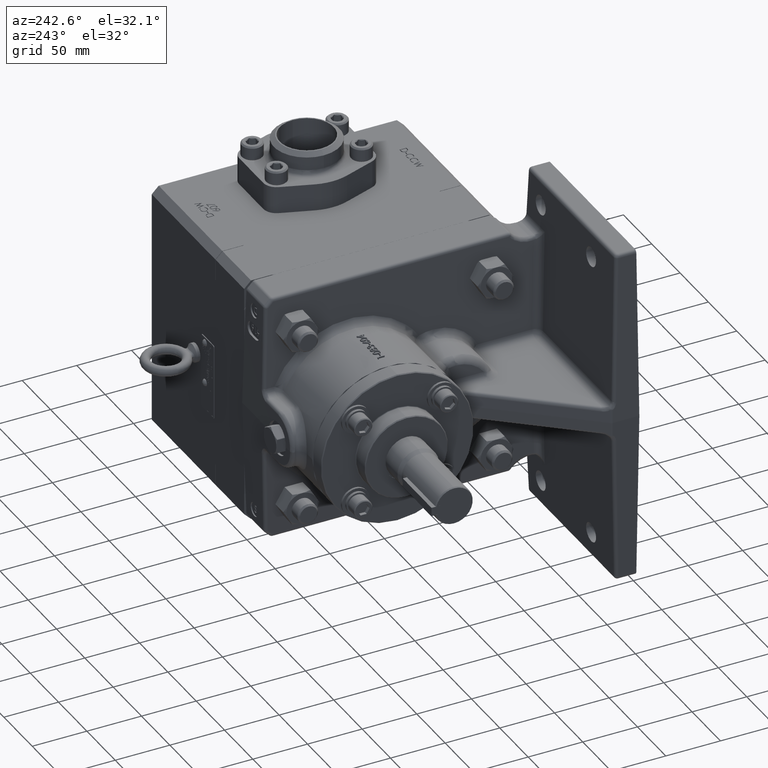
[diagram: clean part render]
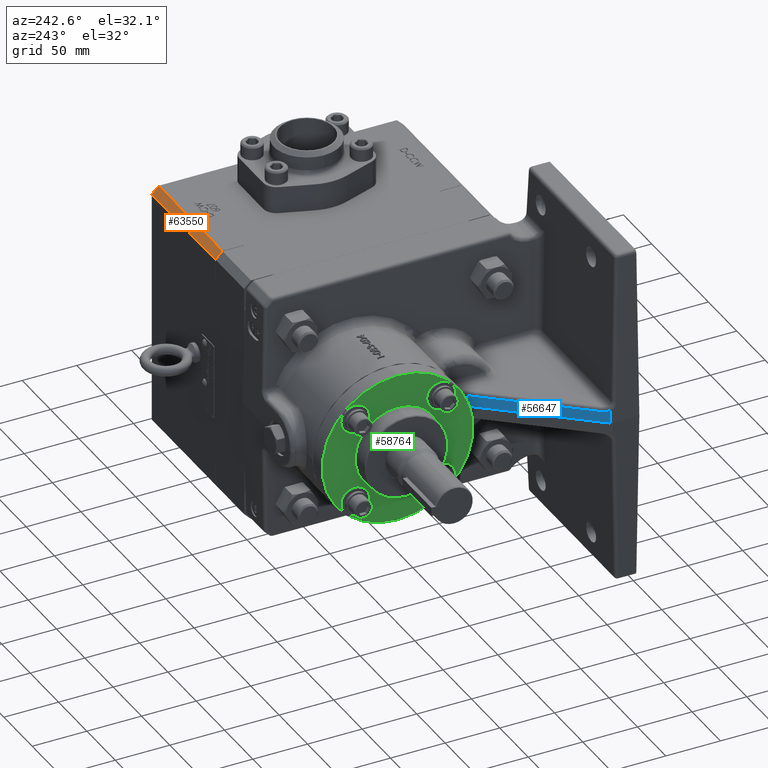
[diagram: same view with three faces highlighted in distinct colors, each labeled with its STEP entity id]
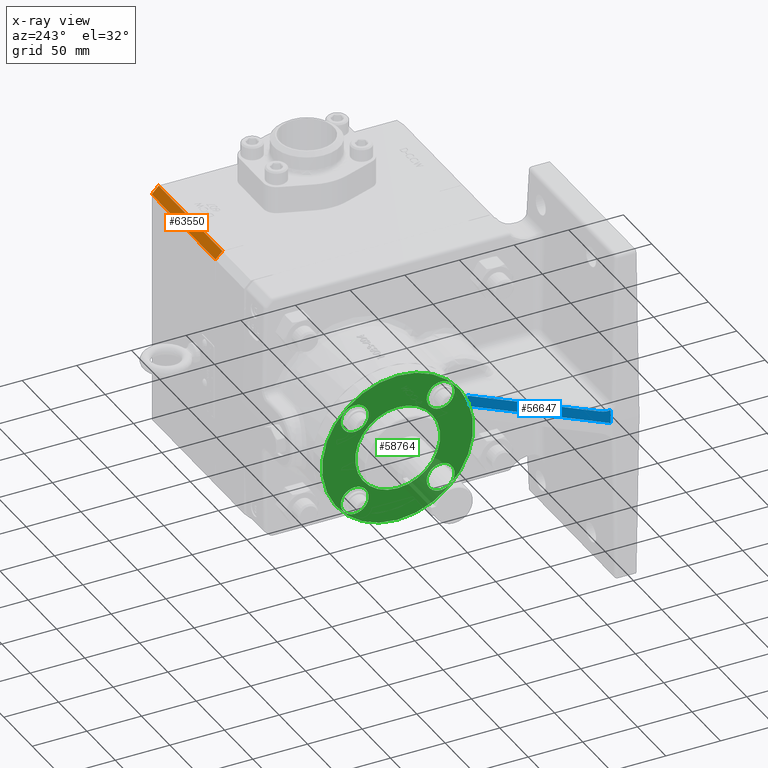
[diagram: x-ray of the same camera — body ghosted, the three highlighted faces saturated]
A machine part, auxiliary view with three faces highlighted in distinct colors.
The next image is the same camera in x-ray (body ghosted, the three faces saturated) — at least one of them is partly hidden behind the body in this view.
Their STEP definitions:

[orange] entity #63550 — the highlighted planar face has unit normal (0, 0.7071, 0.7071).
#1291 = CARTESIAN_POINT ( 'NONE',  ( 2.009500000000001000, 3.079999999999999200, 4.250000000000001800 ) ) ;
#3002 = PLANE ( 'NONE',  #91779 ) ;
#11430 = DIRECTION ( 'NONE',  ( 0.0000000000000000000, 0.7071067811865491300, 0.7071067811865460200 ) ) ;
#13845 = CARTESIAN_POINT ( 'NONE',  ( 1.994500000000000800, 2.830000000000001800, 4.500000000000000000 ) ) ;
#14698 = ORIENTED_EDGE ( 'NONE', *, *, #15993, .F. ) ;
#15993 = EDGE_CURVE ( 'Defeatured_0_0+Defeatured_0_964+Defeatured_0_965+Defeatured_0_963', #67349, #74707, #18811, .T. ) ;
#16767 = CARTESIAN_POINT ( 'NONE',  ( 6.434500000000001700, 3.079999999999999200, 4.250000000000001800 ) ) ;
#18353 = FACE_OUTER_BOUND ( 'NONE', #47530, .T. ) ;
#18811 = LINE ( 'NONE', #57538, #77887 ) ;
#26312 = CARTESIAN_POINT ( 'NONE',  ( 6.489500000000000500, 2.830000000000001800, 4.500000000000000000 ) ) ;
#26861 = LINE ( 'NONE', #13845, #89512 ) ;
#28625 = EDGE_CURVE ( 'Defeatured_0_963+Defeatured_0_964+Defeatured_0_0+Defeatured_0_837', #74707, #34177, #58742, .T. ) ;
#31592 = CARTESIAN_POINT ( 'NONE',  ( 2.009500000000001000, 2.830000000000001800, 4.500000000000000000 ) ) ;
#34177 = VERTEX_POINT ( 'NONE', #83659 ) ;
#35867 = ORIENTED_EDGE ( 'NONE', *, *, #37229, .T. ) ;
#37229 = EDGE_CURVE ( 'Defeatured_0_964+Defeatured_0_965+Defeatured_0_0+Defeatured_0_837', #67349, #81785, #58513, .T. ) ;
#38005 = ORIENTED_EDGE ( 'NONE', *, *, #95422, .F. ) ;
#40524 = ORIENTED_EDGE ( 'NONE', *, *, #28625, .F. ) ;
#41646 = CARTESIAN_POINT ( 'NONE',  ( 6.434500000000001700, 3.079999999999999200, 4.250000000000001800 ) ) ;
#41994 = DIRECTION ( 'NONE',  ( 0.0000000000000000000, -0.7071067811865459100, 0.7071067811865490200 ) ) ;
#47530 = EDGE_LOOP ( 'NONE', ( #14698, #35867, #38005, #40524 ) ) ;
#51087 = DIRECTION ( 'NONE',  ( 1.000000000000000000, 0.0000000000000000000, -0.0000000000000000000 ) ) ;
#51250 = VECTOR ( 'NONE', #98797, 39.37007874015748900 ) ;
#57538 = CARTESIAN_POINT ( 'NONE',  ( 6.489500000000000500, 3.079999999999999200, 4.250000000000001800 ) ) ;
#58513 = LINE ( 'NONE', #83507, #51250 ) ;
#58742 = LINE ( 'NONE', #41646, #91272 ) ;
#63550 = ADVANCED_FACE ( 'Defeatured_0_964', ( #18353 ), #3002, .T. ) ;
#67349 = VERTEX_POINT ( 'NONE', #1291 ) ;
#74707 = VERTEX_POINT ( 'NONE', #16767 ) ;
#77887 = VECTOR ( 'NONE', #51087, 39.37007874015748100 ) ;
#79844 = DIRECTION ( 'NONE',  ( 0.0000000000000000000, -0.7071067811865459100, 0.7071067811865490200 ) ) ;
#81785 = VERTEX_POINT ( 'NONE', #31592 ) ;
#83507 = CARTESIAN_POINT ( 'NONE',  ( 2.009500000000001000, 2.830000000000001800, 4.500000000000000000 ) ) ;
#83659 = CARTESIAN_POINT ( 'NONE',  ( 6.434500000000001700, 2.830000000000001800, 4.500000000000000000 ) ) ;
#89512 = VECTOR ( 'NONE', #91363, 39.37007874015748100 ) ;
#91272 = VECTOR ( 'NONE', #41994, 39.37007874015748900 ) ;
#91363 = DIRECTION ( 'NONE',  ( -1.000000000000000000, 0.0000000000000000000, 0.0000000000000000000 ) ) ;
#91779 = AXIS2_PLACEMENT_3D ( 'NONE', #26312, #11430, #79844 ) ;
#95422 = EDGE_CURVE ( 'Defeatured_0_837+Defeatured_0_964+Defeatured_0_963+Defeatured_0_965', #34177, #81785, #26861, .T. ) ;
#98797 = DIRECTION ( 'NONE',  ( 0.0000000000000000000, -0.7071067811865459100, 0.7071067811865490200 ) ) ;

[blue] entity #56647 — the highlighted planar face has unit normal (-0.7656, 0.6424, 0.0349).
#2018 = VERTEX_POINT ( 'NONE', #27307 ) ;
#4219 =( BOUNDED_CURVE ( )  B_SPLINE_CURVE ( 3, ( #13526, #75162, #21286, #98845 ),
 .UNSPECIFIED., .F., .F. ) 
 B_SPLINE_CURVE_WITH_KNOTS ( ( 4, 4 ),
 ( 6.097563296552563000, 6.226003291622060200 ),
 .UNSPECIFIED. ) 
 CURVE ( )  GEOMETRIC_REPRESENTATION_ITEM ( )  RATIONAL_B_SPLINE_CURVE ( ( 1.000000000000000000, 0.9986257363820506500, 0.9986257363820506500, 1.000000000000000000 ) ) 
 REPRESENTATION_ITEM ( '' )  );
#8107 = EDGE_LOOP ( 'NONE', ( #99099, #10458, #58479, #46265, #32258 ) ) ;
#10458 = ORIENTED_EDGE ( 'NONE', *, *, #72295, .T. ) ;
#13526 = CARTESIAN_POINT ( 'NONE',  ( -3.495320437560445200, -3.134757634219636400, 0.3841879396043001400 ) ) ;
#21286 = CARTESIAN_POINT ( 'NONE',  ( -3.528334105221511100, -3.160212525023735200, 0.1285278160194471300 ) ) ;
#22301 = DIRECTION ( 'NONE',  ( -0.7655777895420593500, 0.6423960408422568800, 0.03489949670250103900 ) ) ;
#24001 = LINE ( 'NONE', #62037, #45717 ) ;
#27307 = CARTESIAN_POINT ( 'NONE',  ( -6.525832148639711500, -6.725509046998726400, 0.0000000000000000000 ) ) ;
#30472 = EDGE_CURVE ( 'Defeatured_0_1237+Defeatured_0_951+Defeatured_0_1246+Defeatured_0_902', #46561, #67810, #49946, .T. ) ;
#32258 = ORIENTED_EDGE ( 'NONE', *, *, #61954, .T. ) ;
#32305 = LINE ( 'NONE', #40694, #43199 ) ;
#33403 = CARTESIAN_POINT ( 'NONE',  ( -6.509130191959713800, -6.731588062084250100, 0.4782814618087085100 ) ) ;
#36828 = CARTESIAN_POINT ( 'NONE',  ( -3.534506805711161300, -3.160586322945505800, 0.0000000000000000000 ) ) ;
#40694 = CARTESIAN_POINT ( 'NONE',  ( -6.510329681016642700, -6.731151483771199700, 0.4439325893644045500 ) ) ;
#43199 = VECTOR ( 'NONE', #65502, 39.37007874015748900 ) ;
#44000 = PLANE ( 'NONE',  #76375 ) ;
#45717 = VECTOR ( 'NONE', #76466, 39.37007874015748100 ) ;
#46265 = ORIENTED_EDGE ( 'NONE', *, *, #30472, .T. ) ;
#46561 = VERTEX_POINT ( 'NONE', #90816 ) ;
#46760 = CARTESIAN_POINT ( 'NONE',  ( -3.495320437560445200, -3.134757634219636400, 0.3841879396043001400 ) ) ;
#49946 = LINE ( 'NONE', #68942, #77534 ) ;
#54490 = DIRECTION ( 'NONE',  ( 0.6427876096865379200, 0.7660444431189792300, -2.359596405063252400E-021 ) ) ;
#56647 = ADVANCED_FACE ( 'Defeatured_0_1237', ( #81308 ), #44000, .T. ) ;
#58479 = ORIENTED_EDGE ( 'NONE', *, *, #83458, .T. ) ;
#61954 = EDGE_CURVE ( 'Defeatured_0_1237+Defeatured_0_902+Defeatured_0_951+Defeatured_0_1235', #67810, #65741, #4219, .T. ) ;
#62037 = CARTESIAN_POINT ( 'NONE',  ( -4.003248102314290500, -3.719210447169555500, -0.0000000000000000000 ) ) ;
#65502 = DIRECTION ( 'NONE',  ( 0.03489668151917787300, -0.01270135334764818700, 0.9993102107164156800 ) ) ;
#65741 = VERTEX_POINT ( 'NONE', #36828 ) ;
#67810 = VERTEX_POINT ( 'NONE', #46760 ) ;
#68942 = CARTESIAN_POINT ( 'NONE',  ( -6.556987785515201700, -6.783510695473118800, 0.3841879396043001400 ) ) ;
#72089 = CARTESIAN_POINT ( 'NONE',  ( -6.306558716686171600, -6.485060953006098700, 0.3841879396043001400 ) ) ;
#72295 = EDGE_CURVE ( 'Defeatured_0_1237+Defeatured_0_1271+Defeatured_0_1235+Defeatured_0_1246', #2018, #81703, #32305, .T. ) ;
#75162 = CARTESIAN_POINT ( 'NONE',  ( -3.515254007001503500, -3.151591114023638800, 0.2567666965821769300 ) ) ;
#76203 = DIRECTION ( 'NONE',  ( -0.6427876096865379200, -0.7660444431189792300, 0.0000000000000000000 ) ) ;
#76375 = AXIS2_PLACEMENT_3D ( 'NONE', #99211, #22301, #76203 ) ;
#76466 = DIRECTION ( 'NONE',  ( -0.6427876096865379200, -0.7660444431189792300, -0.0000000000000000000 ) ) ;
#77534 = VECTOR ( 'NONE', #54490, 39.37007874015748100 ) ;
#81308 = FACE_OUTER_BOUND ( 'NONE', #8107, .T. ) ;
#81703 = VERTEX_POINT ( 'NONE', #92228 ) ;
#83458 = EDGE_CURVE ( 'Defeatured_0_1237+Defeatured_0_1246+Defeatured_0_1271+Defeatured_0_951', #81703, #46561, #88249, .T. ) ;
#87236 = CARTESIAN_POINT ( 'NONE',  ( -6.454365543030687200, -6.662992308978631200, 0.4169899950650558000 ) ) ;
#88249 =( BOUNDED_CURVE ( )  B_SPLINE_CURVE ( 3, ( #33403, #87236, #95088, #72089 ),
 .UNSPECIFIED., .F., .F. ) 
 B_SPLINE_CURVE_WITH_KNOTS ( ( 4, 4 ),
 ( 0.7873008797092011500, 1.516522606729060300 ),
 .UNSPECIFIED. ) 
 CURVE ( )  GEOMETRIC_REPRESENTATION_ITEM ( )  RATIONAL_B_SPLINE_CURVE ( ( 1.000000000000000000, 0.9561750616205850800, 0.9561750616205850800, 1.000000000000000000 ) ) 
 REPRESENTATION_ITEM ( '' )  );
#90816 = CARTESIAN_POINT ( 'NONE',  ( -6.306558716686171600, -6.485060953006098700, 0.3841879396043001400 ) ) ;
#92228 = CARTESIAN_POINT ( 'NONE',  ( -6.509130191959713800, -6.731588062084250100, 0.4782814618087085100 ) ) ;
#95088 = CARTESIAN_POINT ( 'NONE',  ( -6.383746858438831500, -6.577050198245503400, 0.3841879396043004800 ) ) ;
#96944 = EDGE_CURVE ( 'Defeatured_0_1237+Defeatured_0_1235+Defeatured_0_902+Defeatured_0_1271', #65741, #2018, #24001, .T. ) ;
#98845 = CARTESIAN_POINT ( 'NONE',  ( -3.534506805711161300, -3.160586322945505800, 0.0000000000000000000 ) ) ;
#99099 = ORIENTED_EDGE ( 'NONE', *, *, #96944, .T. ) ;
#99211 = CARTESIAN_POINT ( 'NONE',  ( -6.553889713136954700, -6.786110286863066500, 0.5000000000000000000 ) ) ;

[green] entity #58764 — the highlighted planar face has unit normal (-1, 0, 0).
#488 = DIRECTION ( 'NONE',  ( 1.000000000000000000, -4.770489558936219500E-018, 0.0000000000000000000 ) ) ;
#657 = VERTEX_POINT ( 'NONE', #91581 ) ;
#1341 = DIRECTION ( 'NONE',  ( 1.000000000000000000, -0.0000000000000000000, -0.0000000000000000000 ) ) ;
#3254 = CIRCLE ( 'NONE', #73502, 0.5000000000000001100 ) ;
#3593 = AXIS2_PLACEMENT_3D ( 'NONE', #91068, #91421, #59462 ) ;
#4236 = CARTESIAN_POINT ( 'NONE',  ( -4.710000000000002600, 1.546796083845585900, 1.546796083845560800 ) ) ;
#4643 = FACE_BOUND ( 'NONE', #66135, .T. ) ;
#4974 = VERTEX_POINT ( 'NONE', #82132 ) ;
#5625 = CIRCLE ( 'NONE', #60690, 0.5000000000000001100 ) ;
#6674 = CARTESIAN_POINT ( 'NONE',  ( -4.710000000000002600, -1.626072460477300900, -1.053120830153286600 ) ) ;
#6930 = EDGE_CURVE ( 'Defeatured_0_1360+Defeatured_0_1374+Defeatured_0_1374+Defeatured_0_1374', #87890, #85947, #37262, .T. ) ;
#6970 = CARTESIAN_POINT ( 'NONE',  ( -4.710000000000002600, 1.732372956085108900, 1.082510369559846600 ) ) ;
#8156 = CIRCLE ( 'NONE', #71533, 0.5000000000000000000 ) ;
#9574 = DIRECTION ( 'NONE',  ( 0.0000000000000000000, 0.1585527532634881700, -0.9873505073845698600 ) ) ;
#10302 = CARTESIAN_POINT ( 'NONE',  ( -4.710000000000002600, 1.361219211606063100, 2.011081798131274700 ) ) ;
#10470 = EDGE_CURVE ( 'Defeatured_0_1360+Defeatured_0_1375+Defeatured_0_1375+Defeatured_0_1375', #61914, #4974, #56031, .T. ) ;
#13446 = CARTESIAN_POINT ( 'NONE',  ( -4.710000000000002600, 1.546796083845567000, -1.546796083845585600 ) ) ;
#14123 = AXIS2_PLACEMENT_3D ( 'NONE', #30305, #80740, #57738 ) ;
#14215 = CARTESIAN_POINT ( 'NONE',  ( -4.710000000000002600, -1.546796083845555000, 1.546796083845574800 ) ) ;
#14382 = DIRECTION ( 'NONE',  ( 1.000000000000000000, 7.285838599102589800E-017, -5.551115123125782700E-017 ) ) ;
#14647 = VERTEX_POINT ( 'NONE', #93407 ) ;
#15429 = EDGE_CURVE ( 'Defeatured_0_1360+Defeatured_0_1372+Defeatured_0_1372+Defeatured_0_1372', #88401, #80737, #5625, .T. ) ;
#16829 = CARTESIAN_POINT ( 'NONE',  ( -4.710000000000002600, 5.463695987328526400E-016, 0.0000000000000000000 ) ) ;
#18003 = PLANE ( 'NONE',  #24937 ) ;
#19365 = CIRCLE ( 'NONE', #3593, 0.4999999999999998900 ) ;
#19764 = DIRECTION ( 'NONE',  ( 0.0000000000000000000, 0.3711537444790457600, -0.9285714285714283800 ) ) ;
#19776 = VERTEX_POINT ( 'NONE', #10302 ) ;
#20299 = CARTESIAN_POINT ( 'NONE',  ( -4.710000000000002600, 5.463695987328526400E-016, 0.0000000000000000000 ) ) ;
#22445 = DIRECTION ( 'NONE',  ( 0.0000000000000000000, 0.2829836251474255900, -0.9591247405308766000 ) ) ;
#22474 = EDGE_CURVE ( 'Defeatured_0_1360+Defeatured_0_1371+Defeatured_0_1371+Defeatured_0_1371', #19776, #64417, #8156, .T. ) ;
#22656 = AXIS2_PLACEMENT_3D ( 'NONE', #20299, #27045, #89378 ) ;
#22809 = AXIS2_PLACEMENT_3D ( 'NONE', #34172, #48352, #79922 ) ;
#23234 = CIRCLE ( 'NONE', #99818, 1.529999999999999800 ) ;
#24212 = VERTEX_POINT ( 'NONE', #6674 ) ;
#24435 = CARTESIAN_POINT ( 'NONE',  ( -4.710000000000002600, 1.546796083845567000, -1.046796083845585600 ) ) ;
#24937 = AXIS2_PLACEMENT_3D ( 'NONE', #79353, #56821, #48107 ) ;
#25039 = ORIENTED_EDGE ( 'NONE', *, *, #47102, .T. ) ;
#25841 = ORIENTED_EDGE ( 'NONE', *, *, #85920, .T. ) ;
#27045 = DIRECTION ( 'NONE',  ( -1.000000000000000000, 0.0000000000000000000, 0.0000000000000000000 ) ) ;
#27095 = AXIS2_PLACEMENT_3D ( 'NONE', #27174, #81045, #42126 ) ;
#27174 = CARTESIAN_POINT ( 'NONE',  ( -4.710000000000002600, 5.463695987328526400E-016, 0.0000000000000000000 ) ) ;
#27201 = EDGE_LOOP ( 'NONE', ( #37200, #79291 ) ) ;
#29623 = ORIENTED_EDGE ( 'NONE', *, *, #42967, .T. ) ;
#30305 = CARTESIAN_POINT ( 'NONE',  ( -4.710000000000002600, 1.546796083845585900, 1.546796083845560800 ) ) ;
#31763 = CARTESIAN_POINT ( 'NONE',  ( -4.710000000000002600, -1.405304271271842200, 1.067233713580136600 ) ) ;
#31896 = CARTESIAN_POINT ( 'NONE',  ( -4.710000000000002600, -1.546796083845557000, -1.546796083845571400 ) ) ;
#34172 = CARTESIAN_POINT ( 'NONE',  ( -4.710000000000002600, 1.546796083845567000, -1.546796083845585600 ) ) ;
#35811 = CARTESIAN_POINT ( 'NONE',  ( -4.710000000000002600, -1.688287896419267800, 2.026358454111012900 ) ) ;
#36299 = EDGE_CURVE ( 'Defeatured_0_1360+Defeatured_0_1374+Defeatured_0_1374+Defeatured_0_1374', #85947, #87890, #97424, .T. ) ;
#36737 = EDGE_CURVE ( 'Defeatured_0_1360+Defeatured_0_1371+Defeatured_0_1371+Defeatured_0_1371', #64417, #19776, #82691, .T. ) ;
#37200 = ORIENTED_EDGE ( 'NONE', *, *, #74747, .T. ) ;
#37262 = CIRCLE ( 'NONE', #22809, 0.4999999999999998300 ) ;
#40298 = VERTEX_POINT ( 'NONE', #90278 ) ;
#40535 = ORIENTED_EDGE ( 'NONE', *, *, #36299, .T. ) ;
#40845 = CARTESIAN_POINT ( 'NONE',  ( -4.710000000000002600, 5.463695987328526400E-016, 0.0000000000000000000 ) ) ;
#41171 = DIRECTION ( 'NONE',  ( 0.0000000000000000000, 0.0000000000000000000, 1.000000000000000000 ) ) ;
#41489 = DIRECTION ( 'NONE',  ( 1.000000000000000000, -0.0000000000000000000, -0.0000000000000000000 ) ) ;
#41563 = AXIS2_PLACEMENT_3D ( 'NONE', #31896, #488, #9574 ) ;
#42126 = DIRECTION ( 'NONE',  ( 0.0000000000000000000, 0.0000000000000000000, 1.000000000000000000 ) ) ;
#42967 = EDGE_CURVE ( 'Defeatured_0_1360+Defeatured_0_1373+Defeatured_0_1373+Defeatured_0_1373', #24212, #657, #19365, .T. ) ;
#43386 = FACE_BOUND ( 'NONE', #88445, .T. ) ;
#44525 = EDGE_LOOP ( 'NONE', ( #40535, #98417 ) ) ;
#45752 = FACE_BOUND ( 'NONE', #44525, .T. ) ;
#46480 = EDGE_CURVE ( 'Defeatured_0_1360+Defeatured_0_1339+Defeatured_0_1339+Defeatured_0_1339', #14647, #40298, #90754, .T. ) ;
#47102 = EDGE_CURVE ( 'Defeatured_0_1360+Defeatured_0_1339+Defeatured_0_1339+Defeatured_0_1339', #40298, #14647, #85787, .T. ) ;
#48107 = DIRECTION ( 'NONE',  ( 0.0000000000000000000, 0.0000000000000000000, 1.000000000000000000 ) ) ;
#48228 = CARTESIAN_POINT ( 'NONE',  ( -4.710000000000002600, 1.546796083845567000, -2.046796083845585600 ) ) ;
#48352 = DIRECTION ( 'NONE',  ( 1.000000000000000000, 0.0000000000000000000, 0.0000000000000000000 ) ) ;
#48439 = AXIS2_PLACEMENT_3D ( 'NONE', #13446, #66712, #67387 ) ;
#49380 = CIRCLE ( 'NONE', #41563, 0.4999999999999998900 ) ;
#56031 = CIRCLE ( 'NONE', #56969, 1.529999999999999800 ) ;
#56821 = DIRECTION ( 'NONE',  ( -1.000000000000000000, 0.0000000000000000000, 0.0000000000000000000 ) ) ;
#56969 = AXIS2_PLACEMENT_3D ( 'NONE', #16829, #1341, #71135 ) ;
#57738 = DIRECTION ( 'NONE',  ( 0.0000000000000000000, 0.3711537444790457600, -0.9285714285714283800 ) ) ;
#58764 = ADVANCED_FACE ( 'Defeatured_0_1360', ( #43386, #86700, #4643, #45752, #66226, #68602 ), #18003, .T. ) ;
#59462 = DIRECTION ( 'NONE',  ( 0.0000000000000000000, 0.1585527532634881700, -0.9873505073845698600 ) ) ;
#60690 = AXIS2_PLACEMENT_3D ( 'NONE', #14215, #60760, #92041 ) ;
#60760 = DIRECTION ( 'NONE',  ( 1.000000000000000000, 7.285838599102589800E-017, -5.551115123125782700E-017 ) ) ;
#61279 = CARTESIAN_POINT ( 'NONE',  ( -4.710000000000002600, -1.546796083845555000, 1.546796083845574800 ) ) ;
#61914 = VERTEX_POINT ( 'NONE', #82913 ) ;
#64417 = VERTEX_POINT ( 'NONE', #6970 ) ;
#65998 = DIRECTION ( 'NONE',  ( 1.000000000000000000, -2.081668171172168500E-017, 0.0000000000000000000 ) ) ;
#66135 = EDGE_LOOP ( 'NONE', ( #29623, #25841 ) ) ;
#66226 = FACE_BOUND ( 'NONE', #27201, .T. ) ;
#66712 = DIRECTION ( 'NONE',  ( 1.000000000000000000, 0.0000000000000000000, 0.0000000000000000000 ) ) ;
#67387 = DIRECTION ( 'NONE',  ( 0.0000000000000000000, 0.0000000000000000000, -1.000000000000000000 ) ) ;
#67672 = EDGE_CURVE ( 'Defeatured_0_1360+Defeatured_0_1372+Defeatured_0_1372+Defeatured_0_1372', #80737, #88401, #3254, .T. ) ;
#68602 = FACE_OUTER_BOUND ( 'NONE', #84782, .T. ) ;
#71135 = DIRECTION ( 'NONE',  ( 0.0000000000000000000, 0.0000000000000000000, 1.000000000000000000 ) ) ;
#71533 = AXIS2_PLACEMENT_3D ( 'NONE', #4236, #65998, #19764 ) ;
#71560 = ORIENTED_EDGE ( 'NONE', *, *, #22474, .T. ) ;
#73502 = AXIS2_PLACEMENT_3D ( 'NONE', #61279, #14382, #22445 ) ;
#74747 = EDGE_CURVE ( 'Defeatured_0_1360+Defeatured_0_1375+Defeatured_0_1375+Defeatured_0_1375', #4974, #61914, #23234, .T. ) ;
#77840 = EDGE_LOOP ( 'NONE', ( #86300, #90573 ) ) ;
#79291 = ORIENTED_EDGE ( 'NONE', *, *, #10470, .T. ) ;
#79353 = CARTESIAN_POINT ( 'NONE',  ( -4.710000000000002600, 1.500000000000000400, 0.0000000000000000000 ) ) ;
#79922 = DIRECTION ( 'NONE',  ( 0.0000000000000000000, 0.0000000000000000000, -1.000000000000000000 ) ) ;
#80269 = ORIENTED_EDGE ( 'NONE', *, *, #46480, .T. ) ;
#80737 = VERTEX_POINT ( 'NONE', #35811 ) ;
#80740 = DIRECTION ( 'NONE',  ( 1.000000000000000000, -2.081668171172168500E-017, 0.0000000000000000000 ) ) ;
#81045 = DIRECTION ( 'NONE',  ( -1.000000000000000000, 0.0000000000000000000, 0.0000000000000000000 ) ) ;
#82132 = CARTESIAN_POINT ( 'NONE',  ( -4.710000000000002600, 5.463695987328526400E-016, 1.529999999999999800 ) ) ;
#82691 = CIRCLE ( 'NONE', #14123, 0.5000000000000000000 ) ;
#82913 = CARTESIAN_POINT ( 'NONE',  ( -4.710000000000002600, 7.337405590023976900E-016, -1.529999999999999800 ) ) ;
#84782 = EDGE_LOOP ( 'NONE', ( #25039, #80269 ) ) ;
#85787 = CIRCLE ( 'NONE', #22656, 2.719999999999999300 ) ;
#85920 = EDGE_CURVE ( 'Defeatured_0_1360+Defeatured_0_1373+Defeatured_0_1373+Defeatured_0_1373', #657, #24212, #49380, .T. ) ;
#85947 = VERTEX_POINT ( 'NONE', #24435 ) ;
#86300 = ORIENTED_EDGE ( 'NONE', *, *, #67672, .T. ) ;
#86700 = FACE_BOUND ( 'NONE', #77840, .T. ) ;
#87729 = ORIENTED_EDGE ( 'NONE', *, *, #36737, .T. ) ;
#87890 = VERTEX_POINT ( 'NONE', #48228 ) ;
#88401 = VERTEX_POINT ( 'NONE', #31763 ) ;
#88445 = EDGE_LOOP ( 'NONE', ( #71560, #87729 ) ) ;
#89378 = DIRECTION ( 'NONE',  ( 0.0000000000000000000, 0.0000000000000000000, 1.000000000000000000 ) ) ;
#90278 = CARTESIAN_POINT ( 'NONE',  ( -4.710000000000002600, 5.463695987328526400E-016, -2.719999999999999300 ) ) ;
#90573 = ORIENTED_EDGE ( 'NONE', *, *, #15429, .T. ) ;
#90754 = CIRCLE ( 'NONE', #27095, 2.719999999999999300 ) ;
#91068 = CARTESIAN_POINT ( 'NONE',  ( -4.710000000000002600, -1.546796083845557000, -1.546796083845571400 ) ) ;
#91421 = DIRECTION ( 'NONE',  ( 1.000000000000000000, -4.770489558936219500E-018, 0.0000000000000000000 ) ) ;
#91581 = CARTESIAN_POINT ( 'NONE',  ( -4.710000000000002600, -1.467519707213812600, -2.040471337537856500 ) ) ;
#92041 = DIRECTION ( 'NONE',  ( 0.0000000000000000000, 0.2829836251474255900, -0.9591247405308766000 ) ) ;
#93407 = CARTESIAN_POINT ( 'NONE',  ( -4.710000000000002600, 8.813104982996536300E-016, 2.719999999999999300 ) ) ;
#97424 = CIRCLE ( 'NONE', #48439, 0.4999999999999998300 ) ;
#98417 = ORIENTED_EDGE ( 'NONE', *, *, #6930, .T. ) ;
#99818 = AXIS2_PLACEMENT_3D ( 'NONE', #40845, #41489, #41171 ) ;